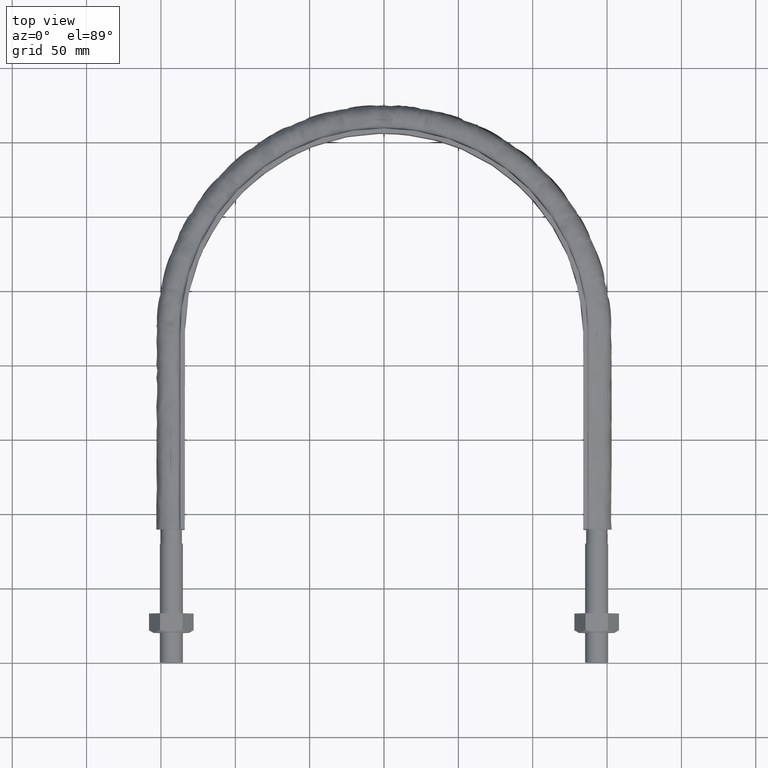
[diagram: clean part render]
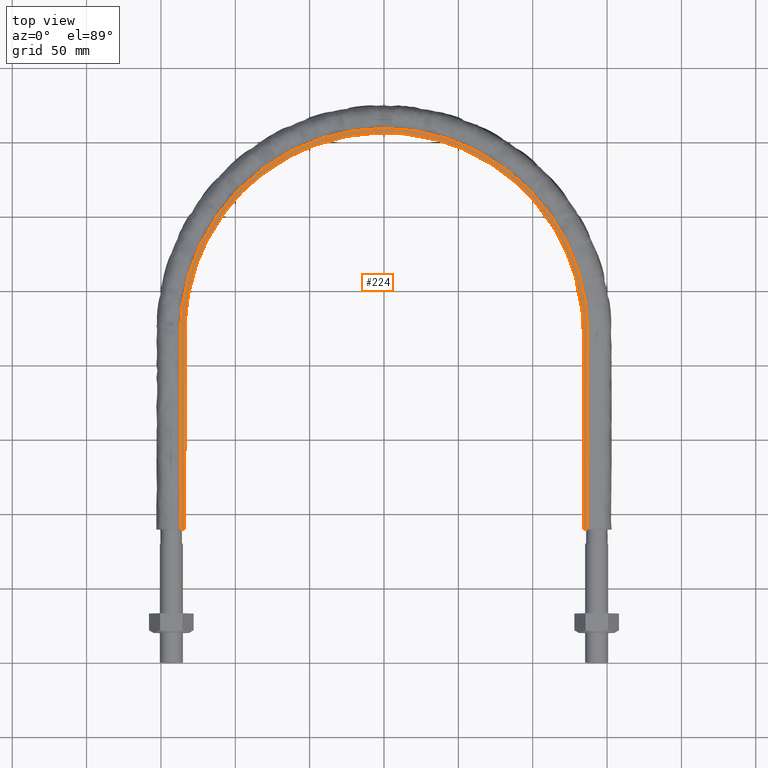
[diagram: same view with one face highlighted and labeled with its STEP entity id]
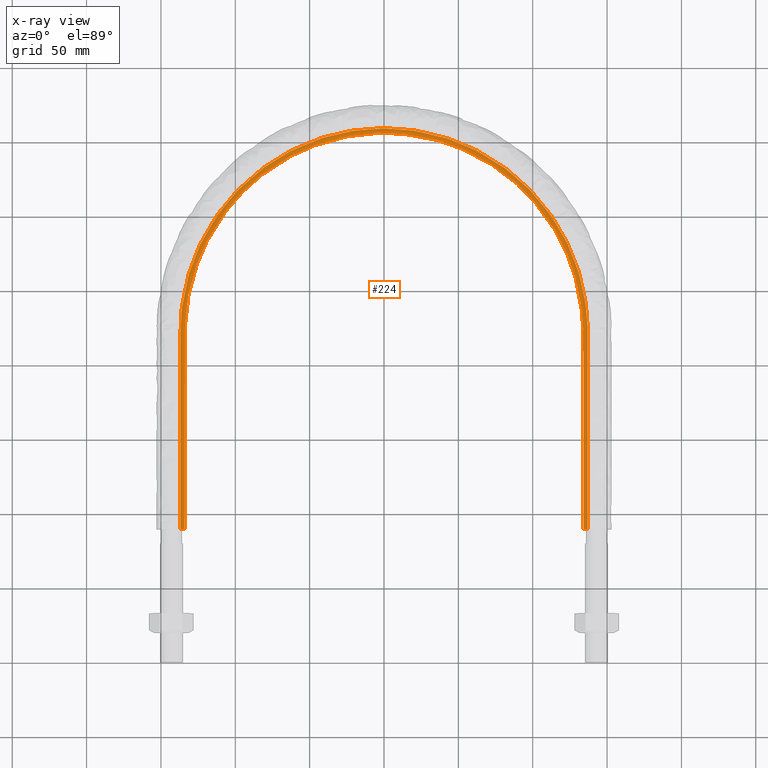
[diagram: x-ray of the same camera — body ghosted, the highlighted face saturated]
A machine part, top view. The second image highlights one B-rep face of the part: STEP entity #224.
The next image is the same camera in x-ray: the body ghosted, the highlighted face saturated — about 0% of this face is hidden behind the body in this view.
In plain terms, the highlighted planar face has unit normal (0, 0, 1).
Its self-contained STEP definition (entity closure, byte-faithful):
#224 = ADVANCED_FACE( '', ( #290 ), #291, .T. );
#290 = FACE_OUTER_BOUND( '', #616, .T. );
#291 = PLANE( '', #617 );
#616 = EDGE_LOOP( '', ( #1611, #1612, #1613, #1614 ) );
#617 = AXIS2_PLACEMENT_3D( '', #1615, #1616, #1617 );
#1611 = ORIENTED_EDGE( '', *, *, #2058, .T. );
#1612 = ORIENTED_EDGE( '', *, *, #2049, .T. );
#1613 = ORIENTED_EDGE( '', *, *, #2055, .T. );
#1614 = ORIENTED_EDGE( '', *, *, #2044, .F. );
#1615 = CARTESIAN_POINT( '', ( 200.000000000000, 489.500000000000, 20.0000000000000 ) );
#1616 = DIRECTION( '', ( 0.000000000000000, 0.000000000000000, 1.00000000000000 ) );
#1617 = DIRECTION( '', ( 1.00000000000000, 0.000000000000000, 0.000000000000000 ) );
#2044 = EDGE_CURVE( '', #2149, #2151, #2152, .T. );
#2049 = EDGE_CURVE( '', #2161, #2159, #2162, .T. );
#2055 = EDGE_CURVE( '', #2159, #2151, #2171, .F. );
#2058 = EDGE_CURVE( '', #2149, #2161, #2175, .F. );
#2149 = VERTEX_POINT( '', #2339 );
#2151 = VERTEX_POINT( '', #2342 );
#2152 = B_SPLINE_CURVE_WITH_KNOTS( '', 3, ( #2343, #2344, #2345, #2346, #2347, #2348, #2349, #2350, #2351, #2352, #2353, #2354, #2355, #2356, #2357, #2358, #2359, #2360, #2361, #2362, #2363, #2364, #2365, #2366, #2367, #2368, #2369, #2370, #2371, #2372, #2373, #2374, #2375, #2376, #2377, #2378, #2379, #2380, #2381, #2382, #2383, #2384, #2385, #2386, #2387, #2388, #2389, #2390, #2391, #2392, #2393, #2394, #2395, #2396, #2397, #2398, #2399, #2400, #2401, #2402, #2403, #2404, #2405, #2406, #2407, #2408, #2409, #2410, #2411, #2412, #2413, #2414, #2415, #2416, #2417, #2418, #2419, #2420, #2421, #2422, #2423, #2424, #2425, #2426, #2427, #2428, #2429, #2430, #2431, #2432, #2433, #2434, #2435, #2436, #2437, #2438, #2439, #2440, #2441, #2442, #2443, #2444, #2445, #2446, #2447, #2448, #2449 ), .UNSPECIFIED., .F., .F., ( 4, 1, 2, 2, 2, 2, 2, 2, 2, 2, 2, 2, 2, 2, 2, 2, 2, 2, 2, 2, 2, 2, 2, 2, 2, 2, 2, 2, 2, 2, 2, 2, 2, 2, 2, 1, 2, 2, 2, 2, 2, 2, 2, 2, 2, 2, 2, 2, 2, 2, 2, 2, 2, 1, 4 ), ( 0.000000000000000, 0.0874256844655815, 0.131138526698372, 0.133870579337922, 0.136602631977471, 0.142066737256570, 0.152994947814768, 0.174851368931163, 0.180315474210262, 0.183047526849812, 0.185779579489361, 0.196707790047559, 0.218564211163955, 0.229492421722153, 0.232224474361703, 0.234956527001252, 0.240420632280351, 0.262277053396747, 0.273205263954945, 0.275937316594494, 0.278669369234044, 0.284133474513143, 0.305989895629539, 0.316918106187736, 0.322382211466835, 0.325114264106385, 0.327846316745934, 0.349702737862330, 0.360630948420528, 0.366095053699627, 0.368827106339176, 0.371559158978726, 0.393415580095122, 0.415272001211517, 0.418004053851067, 0.420736106490616, 0.426200211769715, 0.437128422327914, 0.458984843444310, 0.461716896083859, 0.464448948723409, 0.469913054002508, 0.480841264560705, 0.502697685677100, 0.508161790956199, 0.513625896235298, 0.524554106793496, 0.546410527909891, 0.551874633188990, 0.557338738468089, 0.562802843747188, 0.565534896386737, 0.568266949026287, 0.611979791259078, 0.699405475724661 ), .UNSPECIFIED. );
#2159 = VERTEX_POINT( '', #2477 );
#2161 = VERTEX_POINT( '', #2480 );
#2162 = B_SPLINE_CURVE_WITH_KNOTS( '', 3, ( #2481, #2482, #2483, #2484, #2485, #2486, #2487, #2488, #2489, #2490, #2491, #2492, #2493, #2494, #2495, #2496, #2497 ), .UNSPECIFIED., .F., .F., ( 4, 3, 1, 1, 1, 1, 1, 1, 1, 3, 4 ), ( -10.0000000000000, -9.00000000000000, -8.00000000000000, -7.00000000000000, -6.00000000000000, -5.00000000000000, -4.00000000000000, -3.00000000000000, -2.00000000000000, -1.00000000000000, 0.000000000000000 ), .UNSPECIFIED. );
#2171 = LINE( '', #2556, #2557 );
#2175 = LINE( '', #2668, #2669 );
#2339 = CARTESIAN_POINT( '', ( -136.950000000000, 89.5000000000001, 20.0000000000000 ) );
#2342 = CARTESIAN_POINT( '', ( 136.950000000000, 89.5000000000000, 20.0000000000000 ) );
#2343 = CARTESIAN_POINT( '', ( -136.950000000000, 89.5000000000001, 20.0000000000000 ) );
#2344 = CARTESIAN_POINT( '', ( -136.950000000000, 118.641900248097, 20.0000000000000 ) );
#2345 = CARTESIAN_POINT( '', ( -136.950000000000, 162.354750620242, 20.0000000000000 ) );
#2346 = CARTESIAN_POINT( '', ( -136.950000000000, 206.067600992388, 20.0000000000000 ) );
#2347 = CARTESIAN_POINT( '', ( -136.950000000000, 221.549235499189, 20.0000000000000 ) );
#2348 = CARTESIAN_POINT( '', ( -136.952005766823, 222.459921105955, 20.0000000000000 ) );
#2349 = CARTESIAN_POINT( '', ( -136.934979206279, 224.281279481058, 20.0000000000000 ) );
#2350 = CARTESIAN_POINT( '', ( -136.916553871832, 225.191952619811, 20.0000000000000 ) );
#2351 = CARTESIAN_POINT( '', ( -136.834753701177, 227.923955849783, 20.0000000000000 ) );
#2352 = CARTESIAN_POINT( '', ( -136.743599783762, 229.741272047870, 20.0000000000000 ) );
#2353 = CARTESIAN_POINT( '', ( -136.363495553162, 235.166484778742, 20.0000000000000 ) );
#2354 = CARTESIAN_POINT( '', ( -135.967488703048, 238.753870458483, 20.0000000000000 ) );
#2355 = CARTESIAN_POINT( '', ( -134.367551969832, 249.431038801508, 20.0000000000000 ) );
#2356 = CARTESIAN_POINT( '', ( -132.750553866295, 256.435595074194, 20.0000000000000 ) );
#2357 = CARTESIAN_POINT( '', ( -130.033489035348, 265.047725779313, 20.0000000000000 ) );
#2358 = CARTESIAN_POINT( '', ( -129.454886141077, 266.762891350757, 20.0000000000000 ) );
#2359 = CARTESIAN_POINT( '', ( -128.533317502652, 269.324567410145, 20.0000000000000 ) );
#2360 = CARTESIAN_POINT( '', ( -128.217212893149, 270.176620027551, 20.0000000000000 ) );
#2361 = CARTESIAN_POINT( '', ( -127.566740219219, 271.876957051044, 20.0000000000000 ) );
#2362 = CARTESIAN_POINT( '', ( -127.232398800356, 272.725180838081, 20.0000000000000 ) );
#2363 = CARTESIAN_POINT( '', ( -125.522807242117, 276.937555990540, 20.0000000000000 ) );
#2364 = CARTESIAN_POINT( '', ( -124.027890382201, 280.231015655089, 20.0000000000000 ) );
#2365 = CARTESIAN_POINT( '', ( -119.177772488664, 289.891903517811, 20.0000000000000 ) );
#2366 = CARTESIAN_POINT( '', ( -115.456951462216, 296.039688790399, 20.0000000000000 ) );
#2367 = CARTESIAN_POINT( '', ( -109.152951019672, 304.827169774975, 20.0000000000000 ) );
#2368 = CARTESIAN_POINT( '', ( -106.930050833054, 307.683299996956, 20.0000000000000 ) );
#2369 = CARTESIAN_POINT( '', ( -103.994442146736, 311.159156375516, 20.0000000000000 ) );
#2370 = CARTESIAN_POINT( '', ( -103.399206220783, 311.849830869774, 20.0000000000000 ) );
#2371 = CARTESIAN_POINT( '', ( -102.198265091278, 313.215468669274, 20.0000000000000 ) );
#2372 = CARTESIAN_POINT( '', ( -101.591920700932, 313.891203542517, 20.0000000000000 ) );
#2373 = CARTESIAN_POINT( '', ( -99.7553846231912, 315.897299082128, 20.0000000000000 ) );
#2374 = CARTESIAN_POINT( '', ( -98.5077032633142, 317.206566629285, 20.0000000000000 ) );
#2375 = CARTESIAN_POINT( '', ( -92.1539858603006, 323.613835991367, 20.0000000000000 ) );
#2376 = CARTESIAN_POINT( '', ( -86.7024715106617, 328.295179626358, 20.0000000000000 ) );
#2377 = CARTESIAN_POINT( '', ( -77.9891669345071, 334.670721620162, 20.0000000000000 ) );
#2378 = CARTESIAN_POINT( '', ( -74.9946413234067, 336.687249879648, 20.0000000000000 ) );
#2379 = CARTESIAN_POINT( '', ( -71.1363767592713, 339.069086719332, 20.0000000000000 ) );
#2380 = CARTESIAN_POINT( '', ( -70.3589796436354, 339.538526390095, 20.0000000000000 ) );
#2381 = CARTESIAN_POINT( '', ( -68.7925101038829, 340.463324926285, 20.0000000000000 ) );
#2382 = CARTESIAN_POINT( '', ( -68.0028416365670, 340.918994503189, 20.0000000000000 ) );
#2383 = CARTESIAN_POINT( '', ( -65.6265150792908, 342.258978990773, 20.0000000000000 ) );
#2384 = CARTESIAN_POINT( '', ( -64.0295971988746, 343.118030590869, 20.0000000000000 ) );
#2385 = CARTESIAN_POINT( '', ( -55.9824089667685, 347.244365806939, 20.0000000000000 ) );
#2386 = CARTESIAN_POINT( '', ( -49.3439512001538, 350.003826159947, 20.0000000000000 ) );
#2387 = CARTESIAN_POINT( '', ( -39.0910082444983, 353.346268295589, 20.0000000000000 ) );
#2388 = CARTESIAN_POINT( '', ( -35.6241551653292, 354.327634953126, 20.0000000000000 ) );
#2389 = CARTESIAN_POINT( '', ( -30.3492784457228, 355.598384851549, 20.0000000000000 ) );
#2390 = CARTESIAN_POINT( '', ( -28.5785337099375, 355.988365122304, 20.0000000000000 ) );
#2391 = CARTESIAN_POINT( '', ( -25.9034309357601, 356.522102744637, 20.0000000000000 ) );
#2392 = CARTESIAN_POINT( '', ( -25.0077107436048, 356.691611247168, 20.0000000000000 ) );
#2393 = CARTESIAN_POINT( '', ( -23.2172138820089, 357.012112274077, 20.0000000000000 ) );
#2394 = CARTESIAN_POINT( '', ( -22.3218036874213, 357.163270419115, 20.0000000000000 ) );
#2395 = CARTESIAN_POINT( '', ( -14.2616746941675, 358.442909678168, 20.0000000000000 ) );
#2396 = CARTESIAN_POINT( '', ( -7.08688203431486, 359.005162357812, 20.0000000000000 ) );
#2397 = CARTESIAN_POINT( '', ( 3.69045053044917, 358.997356057590, 20.0000000000000 ) );
#2398 = CARTESIAN_POINT( '', ( 7.28543714269022, 358.851850186394, 20.0000000000000 ) );
#2399 = CARTESIAN_POINT( '', ( 12.6817359396744, 358.418941046075, 20.0000000000000 ) );
#2400 = CARTESIAN_POINT( '', ( 14.4811397915358, 358.238800753868, 20.0000000000000 ) );
#2401 = CARTESIAN_POINT( '', ( 17.1812121944219, 357.914258555030, 20.0000000000000 ) );
#2402 = CARTESIAN_POINT( '', ( 18.0813968219195, 357.797056870437, 20.0000000000000 ) );
#2403 = CARTESIAN_POINT( '', ( 19.8820902819459, 357.544430686409, 20.0000000000000 ) );
#2404 = CARTESIAN_POINT( '', ( 20.7835449490407, 357.408813108141, 20.0000000000000 ) );
#2405 = CARTESIAN_POINT( '', ( 28.8670965883820, 356.111328549364, 20.0000000000000 ) );
#2406 = CARTESIAN_POINT( '', ( 35.8703135520984, 354.406800400232, 20.0000000000000 ) );
#2407 = CARTESIAN_POINT( '', ( 49.5251538415553, 349.933849723643, 20.0000000000000 ) );
#2408 = CARTESIAN_POINT( '', ( 56.1748232267847, 347.159514727641, 20.0000000000000 ) );
#2409 = CARTESIAN_POINT( '', ( 63.4492399728097, 343.413652350479, 20.0000000000000 ) );
#2410 = CARTESIAN_POINT( '', ( 64.2555412528519, 342.988297906811, 20.0000000000000 ) );
#2411 = CARTESIAN_POINT( '', ( 65.8566175141648, 342.123190874316, 20.0000000000000 ) );
#2412 = CARTESIAN_POINT( '', ( 68.2414579243010, 340.803750954360, 20.0000000000000 ) );
#2413 = CARTESIAN_POINT( '', ( 70.5763589403766, 339.419469626309, 20.0000000000000 ) );
#2414 = CARTESIAN_POINT( '', ( 75.1805857318945, 336.565763947976, 20.0000000000000 ) );
#2415 = CARTESIAN_POINT( '', ( 78.1627035340827, 334.549856366450, 20.0000000000000 ) );
#2416 = CARTESIAN_POINT( '', ( 86.8543207620411, 328.171383663366, 20.0000000000000 ) );
#2417 = CARTESIAN_POINT( '', ( 92.3077229888397, 323.476301431764, 20.0000000000000 ) );
#2418 = CARTESIAN_POINT( '', ( 98.0418417248418, 317.673728261725, 20.0000000000000 ) );
#2419 = CARTESIAN_POINT( '', ( 98.6733697505300, 317.021731690662, 20.0000000000000 ) );
#2420 = CARTESIAN_POINT( '', ( 99.9251833237768, 315.703141292678, 20.0000000000000 ) );
#2421 = CARTESIAN_POINT( '', ( 100.546136743137, 315.035752086236, 20.0000000000000 ) );
#2422 = CARTESIAN_POINT( '', ( 102.386046552858, 313.018007311467, 20.0000000000000 ) );
#2423 = CARTESIAN_POINT( '', ( 103.581668710416, 311.652670943037, 20.0000000000000 ) );
#2424 = CARTESIAN_POINT( '', ( 107.077810366196, 307.497593093917, 20.0000000000000 ) );
#2425 = CARTESIAN_POINT( '', ( 109.287409665405, 304.648655660808, 20.0000000000000 ) );
#2426 = CARTESIAN_POINT( '', ( 115.563663674953, 295.872310524427, 20.0000000000000 ) );
#2427 = CARTESIAN_POINT( '', ( 119.278439319531, 289.715802833905, 20.0000000000000 ) );
#2428 = CARTESIAN_POINT( '', ( 123.322162063998, 281.629687512518, 20.0000000000000 ) );
#2429 = CARTESIAN_POINT( '', ( 124.100657851930, 279.992770208301, 20.0000000000000 ) );
#2430 = CARTESIAN_POINT( '', ( 125.595826737251, 276.678684334610, 20.0000000000000 ) );
#2431 = CARTESIAN_POINT( '', ( 126.312684101756, 275.000403133012, 20.0000000000000 ) );
#2432 = CARTESIAN_POINT( '', ( 128.350441665647, 269.950404789003, 20.0000000000000 ) );
#2433 = CARTESIAN_POINT( '', ( 129.565681668817, 266.548771227834, 20.0000000000000 ) );
#2434 = CARTESIAN_POINT( '', ( 132.799201309553, 256.243261059045, 20.0000000000000 ) );
#2435 = CARTESIAN_POINT( '', ( 134.406489655848, 249.239070076662, 20.0000000000000 ) );
#2436 = CARTESIAN_POINT( '', ( 135.730368078418, 240.316580552520, 20.0000000000000 ) );
#2437 = CARTESIAN_POINT( '', ( 135.960596827439, 238.523650463586, 20.0000000000000 ) );
#2438 = CARTESIAN_POINT( '', ( 136.350715609651, 234.920622076926, 20.0000000000000 ) );
#2439 = CARTESIAN_POINT( '', ( 136.510773884774, 233.109390090216, 20.0000000000000 ) );
#2440 = CARTESIAN_POINT( '', ( 136.758613068843, 229.474281669831, 20.0000000000000 ) );
#2441 = CARTESIAN_POINT( '', ( 136.846031799769, 227.656639207718, 20.0000000000000 ) );
#2442 = CARTESIAN_POINT( '', ( 136.922369077726, 224.930043041099, 20.0000000000000 ) );
#2443 = CARTESIAN_POINT( '', ( 136.939052762000, 224.021156467248, 20.0000000000000 ) );
#2444 = CARTESIAN_POINT( '', ( 136.951967908155, 222.203333870084, 20.0000000000000 ) );
#2445 = CARTESIAN_POINT( '', ( 136.950000000000, 221.294402200342, 20.0000000000000 ) );
#2446 = CARTESIAN_POINT( '', ( 136.950000000000, 205.842644700991, 20.0000000000000 ) );
#2447 = CARTESIAN_POINT( '', ( 136.950000000000, 162.214152938120, 20.0000000000000 ) );
#2448 = CARTESIAN_POINT( '', ( 136.950000000000, 118.585661175248, 20.0000000000000 ) );
#2449 = CARTESIAN_POINT( '', ( 136.950000000000, 89.4999999999999, 20.0000000000000 ) );
#2477 = CARTESIAN_POINT( '', ( 133.950000000000, 89.5000000000000, 20.0000000000000 ) );
#2480 = CARTESIAN_POINT( '', ( -133.950000000000, 89.5000000000001, 20.0000000000000 ) );
#2481 = CARTESIAN_POINT( '', ( -133.950000000000, 89.5000000000001, 20.0000000000000 ) );
#2482 = CARTESIAN_POINT( '', ( -133.950000000000, 133.683333333333, 20.0000000000000 ) );
#2483 = CARTESIAN_POINT( '', ( -133.950000000000, 177.866666666667, 20.0000000000000 ) );
#2484 = CARTESIAN_POINT( '', ( -133.950000000000, 222.050000000000, 20.0000000000000 ) );
#2485 = CARTESIAN_POINT( '', ( -133.950000000000, 239.566032700257, 20.0000000000000 ) );
#2486 = CARTESIAN_POINT( '', ( -126.975474198415, 274.652216480459, 20.0000000000000 ) );
#2487 = CARTESIAN_POINT( '', ( -97.1828205848687, 319.230867859828, 20.0000000000000 ) );
#2488 = CARTESIAN_POINT( '', ( -52.5949635017385, 349.026032119855, 20.0000000000000 ) );
#2489 = CARTESIAN_POINT( '', ( 9.95341556962034E-014, 359.486983940073, 20.0000000000000 ) );
#2490 = CARTESIAN_POINT( '', ( 52.5949635017385, 349.026032119855, 20.0000000000000 ) );
#2491 = CARTESIAN_POINT( '', ( 97.1828205848688, 319.230867859828, 20.0000000000000 ) );
#2492 = CARTESIAN_POINT( '', ( 126.975474198415, 274.652216480460, 20.0000000000000 ) );
#2493 = CARTESIAN_POINT( '', ( 133.950000000000, 239.566032700257, 20.0000000000000 ) );
#2494 = CARTESIAN_POINT( '', ( 133.950000000000, 222.050000000000, 20.0000000000000 ) );
#2495 = CARTESIAN_POINT( '', ( 133.950000000000, 177.866666666667, 20.0000000000000 ) );
#2496 = CARTESIAN_POINT( '', ( 133.950000000000, 133.683333333333, 20.0000000000000 ) );
#2497 = CARTESIAN_POINT( '', ( 133.950000000000, 89.5000000000000, 20.0000000000000 ) );
#2556 = CARTESIAN_POINT( '', ( 200.000000000000, 89.5000000000001, 20.0000000000000 ) );
#2557 = VECTOR( '', #3148, 1000.00000000000 );
#2668 = CARTESIAN_POINT( '', ( 200.000000000000, 89.5000000000001, 20.0000000000000 ) );
#2669 = VECTOR( '', #3150, 1000.00000000000 );
#3148 = DIRECTION( '', ( -1.00000000000000, 1.83649404852125E-048, 0.000000000000000 ) );
#3150 = DIRECTION( '', ( -1.00000000000000, 1.83649404852125E-048, 0.000000000000000 ) );